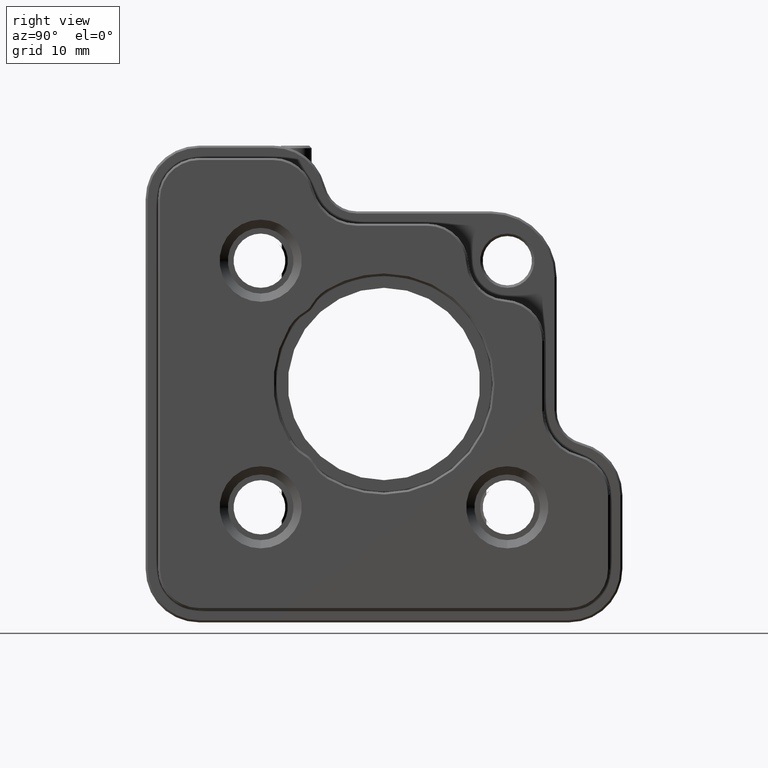
[diagram: clean part render]
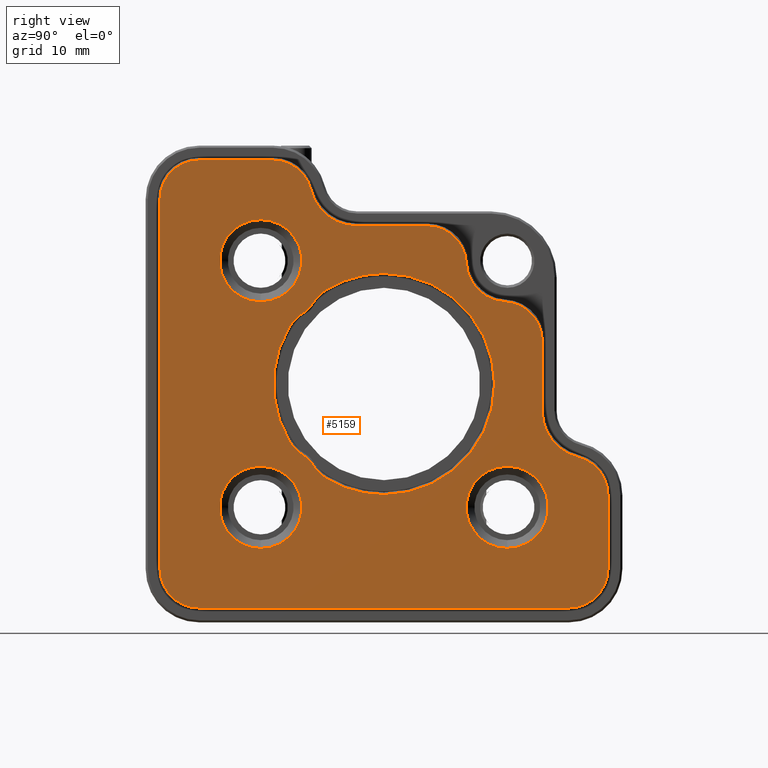
[diagram: same view with one face highlighted and labeled with its STEP entity id]
A machine part, right view. The second image highlights one B-rep face of the part: STEP entity #5159.
In plain terms, the highlighted planar face has unit normal (1, 0, 0).
Its self-contained STEP definition (entity closure, byte-faithful):
#127 = DIRECTION ( 'NONE',  ( 1.000000000000000000, 0.000000000000000000, 0.000000000000000000 ) ) ;
#157 = AXIS2_PLACEMENT_3D ( 'NONE', #36417, #25056, #36172 ) ;
#313 = DIRECTION ( 'NONE',  ( 0.000000000000000000, 1.652117596168366457E-15, -1.000000000000000000 ) ) ;
#544 = CARTESIAN_POINT ( 'NONE',  ( 4.419089919527274368, -8.231932511759529447, 55.00000000000000711 ) ) ;
#548 = CARTESIAN_POINT ( 'NONE',  ( 4.419089919527274368, -15.24979222007645951, 59.24142017658967063 ) ) ;
#697 = EDGE_CURVE ( 'NONE', #7298, #26529, #10355, .T. ) ;
#990 = EDGE_CURVE ( 'NONE', #23276, #33147, #2455, .T. ) ;
#994 = ORIENTED_EDGE ( 'NONE', *, *, #11401, .T. ) ;
#997 = CIRCLE ( 'NONE', #17475, 5.000000000000004441 ) ;
#1159 = AXIS2_PLACEMENT_3D ( 'NONE', #4987, #30526, #33268 ) ;
#1168 = EDGE_CURVE ( 'NONE', #13660, #25238, #21261, .T. ) ;
#1311 = DIRECTION ( 'NONE',  ( 0.000000000000000000, 0.000000000000000000, -1.000000000000000000 ) ) ;
#1599 = DIRECTION ( 'NONE',  ( -1.000000000000000000, -0.000000000000000000, -0.000000000000000000 ) ) ;
#1679 = AXIS2_PLACEMENT_3D ( 'NONE', #2106, #1599, #7485 ) ;
#1693 = CARTESIAN_POINT ( 'NONE',  ( 4.419089919527274368, -15.18889609409257169, 43.48899840526057403 ) ) ;
#1716 = VERTEX_POINT ( 'NONE', #1693 ) ;
#1842 = CARTESIAN_POINT ( 'NONE',  ( 4.419089919527274368, 6.768067488240470553, 45.00000000000001421 ) ) ;
#1859 = CARTESIAN_POINT ( 'NONE',  ( 4.419089919527274368, -17.11853390422319521, 78.63095238095237960 ) ) ;
#2007 = DIRECTION ( 'NONE',  ( 0.000000000000000000, 0.000000000000000000, -1.000000000000000000 ) ) ;
#2106 = CARTESIAN_POINT ( 'NONE',  ( 4.419089919527274368, -15.24979222007645951, 50.75857982341034358 ) ) ;
#2364 = ORIENTED_EDGE ( 'NONE', *, *, #12555, .T. ) ;
#2391 = CIRCLE ( 'NONE', #12971, 5.250000000000067502 ) ;
#2455 = CIRCLE ( 'NONE', #25202, 5.000000000000004441 ) ;
#2482 = CIRCLE ( 'NONE', #32815, 5.000000000000004441 ) ;
#2663 = VECTOR ( 'NONE', #15050, 1000.000000000000000 ) ;
#2709 = CARTESIAN_POINT ( 'NONE',  ( 4.419089919527274368, -11.53389348457395513, 74.25000000000001421 ) ) ;
#2796 = LINE ( 'NONE', #25432, #16821 ) ;
#2799 = VERTEX_POINT ( 'NONE', #17414 ) ;
#2857 = EDGE_CURVE ( 'NONE', #29024, #35888, #14297, .T. ) ;
#2897 = VECTOR ( 'NONE', #19585, 1000.000000000000000 ) ;
#3128 = CIRCLE ( 'NONE', #12548, 5.749999999999998224 ) ;
#3185 = VERTEX_POINT ( 'NONE', #33093 ) ;
#3625 = CARTESIAN_POINT ( 'NONE',  ( 4.419089919527274368, -23.23193251175952767, 35.00000000000000000 ) ) ;
#3635 = CARTESIAN_POINT ( 'NONE',  ( 4.419089919527274368, -8.231932511759527671, 68.45000000000007390 ) ) ;
#3656 = AXIS2_PLACEMENT_3D ( 'NONE', #24014, #4395, #18243 ) ;
#3686 = ORIENTED_EDGE ( 'NONE', *, *, #1168, .T. ) ;
#3812 = DIRECTION ( 'NONE',  ( 0.000000000000000000, 0.000000000000000000, -1.000000000000000000 ) ) ;
#4090 = CARTESIAN_POINT ( 'NONE',  ( 4.419089919527274368, -35.48193251175952412, 32.50000000000000000 ) ) ;
#4139 = DIRECTION ( 'NONE',  ( 0.000000000000000000, 0.000000000000000000, -1.000000000000000000 ) ) ;
#4179 = VERTEX_POINT ( 'NONE', #25168 ) ;
#4336 = DIRECTION ( 'NONE',  ( 1.000000000000000000, 0.000000000000000000, 0.000000000000000000 ) ) ;
#4367 = CIRCLE ( 'NONE', #12596, 4.750000000000000888 ) ;
#4395 = DIRECTION ( 'NONE',  ( -1.000000000000000000, -0.000000000000000000, -0.000000000000000000 ) ) ;
#4659 = ORIENTED_EDGE ( 'NONE', *, *, #12934, .T. ) ;
#4712 = VERTEX_POINT ( 'NONE', #15338 ) ;
#4718 = ORIENTED_EDGE ( 'NONE', *, *, #7825, .T. ) ;
#4787 = CIRCLE ( 'NONE', #157, 5.000000000000004441 ) ;
#4888 = CIRCLE ( 'NONE', #17190, 13.45000000000007390 ) ;
#4987 = CARTESIAN_POINT ( 'NONE',  ( 4.419089919527274368, -2.969103558834755408, 69.50000000000000000 ) ) ;
#5159 = ADVANCED_FACE ( 'NONE', ( #21434, #14008, #24953, #33402, #35563 ), #13121, .T. ) ;
#5343 = EDGE_CURVE ( 'NONE', #3185, #7472, #18374, .T. ) ;
#5396 = AXIS2_PLACEMENT_3D ( 'NONE', #9937, #12732, #13105 ) ;
#5498 = CARTESIAN_POINT ( 'NONE',  ( 4.419089919527274368, -8.231932511759529447, 55.00000000000000711 ) ) ;
#5571 = CIRCLE ( 'NONE', #13782, 4.750000000000004441 ) ;
#5746 = EDGE_CURVE ( 'NONE', #23614, #35516, #9110, .T. ) ;
#5876 = CARTESIAN_POINT ( 'NONE',  ( 4.419089919527274368, -17.86090657607949694, 46.20395779519817125 ) ) ;
#5892 = AXIS2_PLACEMENT_3D ( 'NONE', #27183, #30017, #2007 ) ;
#6017 = VERTEX_POINT ( 'NONE', #32618 ) ;
#6366 = AXIS2_PLACEMENT_3D ( 'NONE', #548, #34108, #313 ) ;
#6390 = CARTESIAN_POINT ( 'NONE',  ( 4.419089919527274368, -15.18889609409257169, 66.51100159473944018 ) ) ;
#6400 = ORIENTED_EDGE ( 'NONE', *, *, #8215, .T. ) ;
#6499 = CARTESIAN_POINT ( 'NONE',  ( 4.419089919527274368, -8.231932511759529447, 55.00000000000000711 ) ) ;
#6971 = CARTESIAN_POINT ( 'NONE',  ( 4.419089919527274368, -23.23193251175952767, 75.00000000000001421 ) ) ;
#7085 = CARTESIAN_POINT ( 'NONE',  ( 4.419089919527274368, 16.76806748824047233, 51.69803902718557254 ) ) ;
#7298 = VERTEX_POINT ( 'NONE', #13044 ) ;
#7472 = VERTEX_POINT ( 'NONE', #1842 ) ;
#7485 = DIRECTION ( 'NONE',  ( 0.000000000000000000, 0.000000000000000000, -1.000000000000000000 ) ) ;
#7681 = EDGE_LOOP ( 'NONE', ( #32984, #15671 ) ) ;
#7747 = ORIENTED_EDGE ( 'NONE', *, *, #30871, .T. ) ;
#7817 = DIRECTION ( 'NONE',  ( 0.000000000000000000, 0.000000000000000000, -1.000000000000000000 ) ) ;
#7825 = EDGE_CURVE ( 'NONE', #2799, #1716, #4888, .T. ) ;
#7963 = ORIENTED_EDGE ( 'NONE', *, *, #9915, .T. ) ;
#8008 = VERTEX_POINT ( 'NONE', #28576 ) ;
#8215 = EDGE_CURVE ( 'NONE', #17989, #24619, #20353, .T. ) ;
#8405 = VERTEX_POINT ( 'NONE', #36434 ) ;
#8515 = ORIENTED_EDGE ( 'NONE', *, *, #697, .T. ) ;
#8563 = EDGE_CURVE ( 'NONE', #1716, #23614, #15956, .T. ) ;
#8585 = EDGE_CURVE ( 'NONE', #30182, #12186, #27363, .T. ) ;
#8740 = EDGE_CURVE ( 'NONE', #7472, #3185, #997, .T. ) ;
#8812 = DIRECTION ( 'NONE',  ( -1.000000000000000000, -0.000000000000000000, -0.000000000000000000 ) ) ;
#8875 = DIRECTION ( 'NONE',  ( -1.000000000000000000, -0.000000000000000000, -0.000000000000000000 ) ) ;
#8975 = CARTESIAN_POINT ( 'NONE',  ( 4.419089919527274368, -30.73193251175952767, 77.50000000000001421 ) ) ;
#9110 = CIRCLE ( 'NONE', #5396, 2.249999999999932498 ) ;
#9128 = EDGE_CURVE ( 'NONE', #19386, #13393, #36111, .T. ) ;
#9138 = LINE ( 'NONE', #31087, #26703 ) ;
#9354 = CARTESIAN_POINT ( 'NONE',  ( 4.419089919527274368, 6.768067488240469665, 40.00000000000000711 ) ) ;
#9550 = CARTESIAN_POINT ( 'NONE',  ( 4.419089919527274368, 19.01806748824047588, 41.50000000000000000 ) ) ;
#9552 = DIRECTION ( 'NONE',  ( -1.000000000000000000, -0.000000000000000000, -0.000000000000000000 ) ) ;
#9603 = CIRCLE ( 'NONE', #1679, 5.250000000000073719 ) ;
#9679 = DIRECTION ( 'NONE',  ( -1.000000000000000000, -0.000000000000000000, -0.000000000000000000 ) ) ;
#9799 = ORIENTED_EDGE ( 'NONE', *, *, #28529, .T. ) ;
#9864 = DIRECTION ( 'NONE',  ( -1.000000000000000000, -0.000000000000000000, -0.000000000000000000 ) ) ;
#9895 = CARTESIAN_POINT ( 'NONE',  ( 4.419089919527274368, -23.23193251175952767, 65.00000000000000000 ) ) ;
#9904 = CARTESIAN_POINT ( 'NONE',  ( 4.419089919527274368, 14.26806748824047588, 32.50000000000000711 ) ) ;
#9915 = EDGE_CURVE ( 'NONE', #6017, #30182, #27626, .T. ) ;
#9937 = CARTESIAN_POINT ( 'NONE',  ( 4.419089919527274368, -18.97995558579503239, 44.25197692596447041 ) ) ;
#10355 = LINE ( 'NONE', #36462, #2897 ) ;
#10497 = EDGE_CURVE ( 'NONE', #8008, #17989, #9138, .T. ) ;
#10501 = CARTESIAN_POINT ( 'NONE',  ( 4.419089919527274368, -21.73193251175952767, 77.50000000000001421 ) ) ;
#10649 = DIRECTION ( 'NONE',  ( 0.000000000000000000, -1.000000000000000000, -1.239088197126290817E-16 ) ) ;
#10774 = ORIENTED_EDGE ( 'NONE', *, *, #25514, .T. ) ;
#11401 = EDGE_CURVE ( 'NONE', #12186, #28310, #2482, .T. ) ;
#11662 = VECTOR ( 'NONE', #10649, 1000.000000000000000 ) ;
#11700 = CARTESIAN_POINT ( 'NONE',  ( 4.419089919527274368, 1.774646438458302278, 69.74358974358975161 ) ) ;
#12177 = CARTESIAN_POINT ( 'NONE',  ( 4.419089919527274368, 14.26806748824047588, 27.75000000000000711 ) ) ;
#12186 = VERTEX_POINT ( 'NONE', #27737 ) ;
#12308 = DIRECTION ( 'NONE',  ( 0.000000000000000000, 0.000000000000000000, -1.000000000000000000 ) ) ;
#12548 = AXIS2_PLACEMENT_3D ( 'NONE', #7085, #26977, #29959 ) ;
#12555 = EDGE_CURVE ( 'NONE', #25815, #2799, #22211, .T. ) ;
#12596 = AXIS2_PLACEMENT_3D ( 'NONE', #32839, #27386, #29987 ) ;
#12732 = DIRECTION ( 'NONE',  ( 1.000000000000000000, 0.000000000000000000, 0.000000000000000000 ) ) ;
#12934 = EDGE_CURVE ( 'NONE', #35888, #35072, #2391, .T. ) ;
#12971 = AXIS2_PLACEMENT_3D ( 'NONE', #21529, #13332, #35729 ) ;
#13044 = CARTESIAN_POINT ( 'NONE',  ( 4.419089919527274368, -21.73193251175952767, 82.25000000000000000 ) ) ;
#13105 = DIRECTION ( 'NONE',  ( 0.000000000000000000, 0.000000000000000000, -1.000000000000000000 ) ) ;
#13121 = PLANE ( 'NONE',  #14709 ) ;
#13332 = DIRECTION ( 'NONE',  ( -1.000000000000000000, -0.000000000000000000, -0.000000000000000000 ) ) ;
#13393 = VERTEX_POINT ( 'NONE', #27295 ) ;
#13519 = AXIS2_PLACEMENT_3D ( 'NONE', #33285, #21928, #19219 ) ;
#13660 = VERTEX_POINT ( 'NONE', #25553 ) ;
#13782 = AXIS2_PLACEMENT_3D ( 'NONE', #8975, #4336, #19283 ) ;
#13875 = ORIENTED_EDGE ( 'NONE', *, *, #18495, .T. ) ;
#13949 = AXIS2_PLACEMENT_3D ( 'NONE', #9904, #29668, #4139 ) ;
#14008 = FACE_BOUND ( 'NONE', #32145, .T. ) ;
#14011 = AXIS2_PLACEMENT_3D ( 'NONE', #9354, #28853, #25934 ) ;
#14093 = CARTESIAN_POINT ( 'NONE',  ( 4.419089919527274368, -18.97995558579503239, 65.74802307403554380 ) ) ;
#14297 = CIRCLE ( 'NONE', #20568, 2.249999999999932498 ) ;
#14401 = DIRECTION ( 'NONE',  ( 0.000000000000000000, 0.000000000000000000, -1.000000000000000000 ) ) ;
#14709 = AXIS2_PLACEMENT_3D ( 'NONE', #6499, #25890, #3812 ) ;
#14751 = DIRECTION ( 'NONE',  ( -1.000000000000000000, -0.000000000000000000, -0.000000000000000000 ) ) ;
#14954 = CARTESIAN_POINT ( 'NONE',  ( 4.419089919527274368, -17.02797471656133155, 45.37102593568001652 ) ) ;
#15050 = DIRECTION ( 'NONE',  ( 0.000000000000000000, 0.000000000000000000, 1.000000000000000000 ) ) ;
#15338 = CARTESIAN_POINT ( 'NONE',  ( 4.419089919527274368, 19.01806748824047588, 41.50000000000000000 ) ) ;
#15532 = EDGE_CURVE ( 'NONE', #4712, #16689, #20735, .T. ) ;
#15671 = ORIENTED_EDGE ( 'NONE', *, *, #990, .T. ) ;
#15956 = CIRCLE ( 'NONE', #16290, 5.250000000000073719 ) ;
#16001 = DIRECTION ( 'NONE',  ( 1.000000000000000000, 0.000000000000000000, 0.000000000000000000 ) ) ;
#16080 = AXIS2_PLACEMENT_3D ( 'NONE', #17136, #8812, #7817 ) ;
#16290 = AXIS2_PLACEMENT_3D ( 'NONE', #34955, #35080, #20994 ) ;
#16510 = AXIS2_PLACEMENT_3D ( 'NONE', #544, #8875, #14401 ) ;
#16689 = VERTEX_POINT ( 'NONE', #24471 ) ;
#16754 = DIRECTION ( 'NONE',  ( -1.000000000000000000, -0.000000000000000000, -0.000000000000000000 ) ) ;
#16821 = VECTOR ( 'NONE', #25055, 1000.000000000000000 ) ;
#17088 = CARTESIAN_POINT ( 'NONE',  ( 4.419089919527274368, -17.02797471656133155, 64.62897406432000480 ) ) ;
#17136 = CARTESIAN_POINT ( 'NONE',  ( 4.419089919527274368, -23.23193251175952767, 40.00000000000000711 ) ) ;
#17190 = AXIS2_PLACEMENT_3D ( 'NONE', #5498, #16754, #27709 ) ;
#17414 = CARTESIAN_POINT ( 'NONE',  ( 4.419089919527274368, -8.231932511759529447, 41.54999999999993321 ) ) ;
#17475 = AXIS2_PLACEMENT_3D ( 'NONE', #29752, #9864, #26785 ) ;
#17559 = CARTESIAN_POINT ( 'NONE',  ( 4.419089919527274368, 19.01806748824047588, 32.50000000000000711 ) ) ;
#17699 = DIRECTION ( 'NONE',  ( -1.000000000000000000, -0.000000000000000000, -0.000000000000000000 ) ) ;
#17873 = VERTEX_POINT ( 'NONE', #4090 ) ;
#17989 = VERTEX_POINT ( 'NONE', #12177 ) ;
#18007 = CARTESIAN_POINT ( 'NONE',  ( 4.419089919527274368, -8.231932511759529447, 55.00000000000000711 ) ) ;
#18020 = ORIENTED_EDGE ( 'NONE', *, *, #8585, .T. ) ;
#18062 = DIRECTION ( 'NONE',  ( 1.000000000000000000, 0.000000000000000000, 0.000000000000000000 ) ) ;
#18134 = CIRCLE ( 'NONE', #13519, 5.750000000000005329 ) ;
#18213 = DIRECTION ( 'NONE',  ( 0.000000000000000000, 0.000000000000000000, -1.000000000000000000 ) ) ;
#18243 = DIRECTION ( 'NONE',  ( 0.000000000000000000, 0.000000000000000000, -1.000000000000000000 ) ) ;
#18353 = EDGE_CURVE ( 'NONE', #35072, #25815, #35127, .T. ) ;
#18374 = CIRCLE ( 'NONE', #14011, 5.000000000000004441 ) ;
#18495 = EDGE_CURVE ( 'NONE', #34706, #36294, #18134, .T. ) ;
#18507 = ORIENTED_EDGE ( 'NONE', *, *, #22102, .T. ) ;
#18626 = ORIENTED_EDGE ( 'NONE', *, *, #27909, .T. ) ;
#18821 = VECTOR ( 'NONE', #32376, 1000.000000000000000 ) ;
#19161 = ORIENTED_EDGE ( 'NONE', *, *, #32599, .T. ) ;
#19219 = DIRECTION ( 'NONE',  ( 0.000000000000000000, 0.000000000000000000, -1.000000000000000000 ) ) ;
#19232 = EDGE_LOOP ( 'NONE', ( #19161, #13875, #18507, #8515, #19787, #7747, #34133, #24623, #6400, #18626, #21674, #24073, #7963, #18020, #994, #10774 ) ) ;
#19283 = DIRECTION ( 'NONE',  ( 0.000000000000000000, 0.000000000000000000, -1.000000000000000000 ) ) ;
#19386 = VERTEX_POINT ( 'NONE', #3625 ) ;
#19400 = AXIS2_PLACEMENT_3D ( 'NONE', #28726, #14751, #19983 ) ;
#19585 = DIRECTION ( 'NONE',  ( 0.000000000000000000, -1.000000000000000000, -6.308085367188388762E-17 ) ) ;
#19693 = EDGE_CURVE ( 'NONE', #17873, #8008, #4367, .T. ) ;
#19787 = ORIENTED_EDGE ( 'NONE', *, *, #24197, .T. ) ;
#19983 = DIRECTION ( 'NONE',  ( 0.000000000000000000, 0.000000000000000000, -1.000000000000000000 ) ) ;
#20353 = CIRCLE ( 'NONE', #13949, 4.750000000000000888 ) ;
#20568 = AXIS2_PLACEMENT_3D ( 'NONE', #14093, #127, #33909 ) ;
#20626 = AXIS2_PLACEMENT_3D ( 'NONE', #18007, #9679, #1311 ) ;
#20735 = CIRCLE ( 'NONE', #5892, 4.750000000000004441 ) ;
#20994 = DIRECTION ( 'NONE',  ( 0.000000000000000000, 9.912705577010186513E-16, -1.000000000000000000 ) ) ;
#21261 = CIRCLE ( 'NONE', #16510, 13.45000000000007390 ) ;
#21434 = FACE_OUTER_BOUND ( 'NONE', #19232, .T. ) ;
#21529 = CARTESIAN_POINT ( 'NONE',  ( 4.419089919527274368, -12.47335268834916988, 62.01785970831694783 ) ) ;
#21674 = ORIENTED_EDGE ( 'NONE', *, *, #15532, .T. ) ;
#21750 = LINE ( 'NONE', #36099, #11662 ) ;
#21885 = DIRECTION ( 'NONE',  ( 0.000000000000000000, 0.000000000000000000, -1.000000000000000000 ) ) ;
#21928 = DIRECTION ( 'NONE',  ( -1.000000000000000000, -0.000000000000000000, -0.000000000000000000 ) ) ;
#21967 = LINE ( 'NONE', #9550, #2663 ) ;
#22102 = EDGE_CURVE ( 'NONE', #36294, #7298, #27481, .T. ) ;
#22211 = CIRCLE ( 'NONE', #20626, 13.45000000000007390 ) ;
#22617 = EDGE_CURVE ( 'NONE', #25238, #29024, #32117, .T. ) ;
#22700 = CARTESIAN_POINT ( 'NONE',  ( 4.419089919527274368, 11.01806748824047766, 60.26282895292478514 ) ) ;
#22801 = CARTESIAN_POINT ( 'NONE',  ( 4.419089919527274368, -19.74293410649893943, 61.95696358233308843 ) ) ;
#22891 = ORIENTED_EDGE ( 'NONE', *, *, #8740, .T. ) ;
#23043 = CIRCLE ( 'NONE', #19400, 5.000000000000004441 ) ;
#23276 = VERTEX_POINT ( 'NONE', #6971 ) ;
#23614 = VERTEX_POINT ( 'NONE', #14954 ) ;
#23833 = CARTESIAN_POINT ( 'NONE',  ( 4.419089919527274368, 11.01806748824047766, 60.26282895292478514 ) ) ;
#24014 = CARTESIAN_POINT ( 'NONE',  ( 4.419089919527274368, -8.231932511759529447, 55.00000000000000711 ) ) ;
#24073 = ORIENTED_EDGE ( 'NONE', *, *, #35316, .T. ) ;
#24197 = EDGE_CURVE ( 'NONE', #26529, #8405, #5571, .T. ) ;
#24471 = CARTESIAN_POINT ( 'NONE',  ( 4.419089919527274368, 15.39901986919285903, 46.11339860753633246 ) ) ;
#24619 = VERTEX_POINT ( 'NONE', #17559 ) ;
#24623 = ORIENTED_EDGE ( 'NONE', *, *, #10497, .T. ) ;
#24640 = EDGE_CURVE ( 'NONE', #33147, #23276, #23043, .T. ) ;
#24716 = ORIENTED_EDGE ( 'NONE', *, *, #22617, .T. ) ;
#24790 = EDGE_LOOP ( 'NONE', ( #31032, #22891 ) ) ;
#24953 = FACE_BOUND ( 'NONE', #7681, .T. ) ;
#25055 = DIRECTION ( 'NONE',  ( 0.000000000000000000, 0.000000000000000000, -1.000000000000000000 ) ) ;
#25056 = DIRECTION ( 'NONE',  ( -1.000000000000000000, -0.000000000000000000, -0.000000000000000000 ) ) ;
#25168 = CARTESIAN_POINT ( 'NONE',  ( 4.419089919527274368, -2.969103558834755408, 74.25000000000001421 ) ) ;
#25202 = AXIS2_PLACEMENT_3D ( 'NONE', #32165, #9552, #18213 ) ;
#25221 = ORIENTED_EDGE ( 'NONE', *, *, #18353, .T. ) ;
#25238 = VERTEX_POINT ( 'NONE', #22801 ) ;
#25432 = CARTESIAN_POINT ( 'NONE',  ( 4.419089919527274368, -35.48193251175952412, 32.50000000000000000 ) ) ;
#25514 = EDGE_CURVE ( 'NONE', #28310, #4179, #27349, .T. ) ;
#25553 = CARTESIAN_POINT ( 'NONE',  ( 4.419089919527274368, -19.74293410649894298, 48.04303641766693289 ) ) ;
#25815 = VERTEX_POINT ( 'NONE', #3635 ) ;
#25890 = DIRECTION ( 'NONE',  ( 1.000000000000000000, 0.000000000000000000, 0.000000000000000000 ) ) ;
#25934 = DIRECTION ( 'NONE',  ( 0.000000000000000000, 0.000000000000000000, -1.000000000000000000 ) ) ;
#26310 = CARTESIAN_POINT ( 'NONE',  ( 4.419089919527274368, 6.768067488240469665, 70.00000000000000000 ) ) ;
#26529 = VERTEX_POINT ( 'NONE', #32528 ) ;
#26703 = VECTOR ( 'NONE', #27998, 1000.000000000000000 ) ;
#26785 = DIRECTION ( 'NONE',  ( 0.000000000000000000, 0.000000000000000000, -1.000000000000000000 ) ) ;
#26925 = ORIENTED_EDGE ( 'NONE', *, *, #8563, .T. ) ;
#26977 = DIRECTION ( 'NONE',  ( -1.000000000000000000, -0.000000000000000000, -0.000000000000000000 ) ) ;
#27183 = CARTESIAN_POINT ( 'NONE',  ( 4.419089919527274368, 14.26806748824047588, 41.50000000000000711 ) ) ;
#27289 = ORIENTED_EDGE ( 'NONE', *, *, #2857, .T. ) ;
#27295 = CARTESIAN_POINT ( 'NONE',  ( 4.419089919527274368, -23.23193251175952767, 45.00000000000001421 ) ) ;
#27349 = CIRCLE ( 'NONE', #1159, 4.750000000000004441 ) ;
#27363 = CIRCLE ( 'NONE', #33994, 4.749999999999997335 ) ;
#27386 = DIRECTION ( 'NONE',  ( 1.000000000000000000, 0.000000000000000000, 0.000000000000000000 ) ) ;
#27481 = CIRCLE ( 'NONE', #34375, 4.750000000000004441 ) ;
#27626 = LINE ( 'NONE', #23833, #18821 ) ;
#27709 = DIRECTION ( 'NONE',  ( 0.000000000000000000, 0.000000000000000000, -1.000000000000000000 ) ) ;
#27737 = CARTESIAN_POINT ( 'NONE',  ( 4.419089919527274368, 6.511657231830218606, 65.00657895021784327 ) ) ;
#27909 = EDGE_CURVE ( 'NONE', #24619, #4712, #21967, .T. ) ;
#27998 = DIRECTION ( 'NONE',  ( 0.000000000000000000, 1.000000000000000000, 6.308085367188388762E-17 ) ) ;
#28310 = VERTEX_POINT ( 'NONE', #11700 ) ;
#28529 = EDGE_CURVE ( 'NONE', #35516, #13660, #9603, .T. ) ;
#28576 = CARTESIAN_POINT ( 'NONE',  ( 4.419089919527274368, -30.73193251175952767, 27.75000000000000355 ) ) ;
#28726 = CARTESIAN_POINT ( 'NONE',  ( 4.419089919527274368, -23.23193251175952767, 70.00000000000000000 ) ) ;
#28747 = DIRECTION ( 'NONE',  ( 0.000000000000000000, 0.000000000000000000, -1.000000000000000000 ) ) ;
#28853 = DIRECTION ( 'NONE',  ( -1.000000000000000000, -0.000000000000000000, -0.000000000000000000 ) ) ;
#29024 = VERTEX_POINT ( 'NONE', #29778 ) ;
#29668 = DIRECTION ( 'NONE',  ( 1.000000000000000000, 0.000000000000000000, 0.000000000000000000 ) ) ;
#29752 = CARTESIAN_POINT ( 'NONE',  ( 4.419089919527274368, 6.768067488240469665, 40.00000000000000711 ) ) ;
#29778 = CARTESIAN_POINT ( 'NONE',  ( 4.419089919527274368, -17.86090657607949694, 63.79604220480183585 ) ) ;
#29959 = DIRECTION ( 'NONE',  ( 0.000000000000000000, 0.000000000000000000, -1.000000000000000000 ) ) ;
#29987 = DIRECTION ( 'NONE',  ( 0.000000000000000000, 0.000000000000000000, -1.000000000000000000 ) ) ;
#30017 = DIRECTION ( 'NONE',  ( 1.000000000000000000, 0.000000000000000000, 0.000000000000000000 ) ) ;
#30064 = ORIENTED_EDGE ( 'NONE', *, *, #31583, .T. ) ;
#30182 = VERTEX_POINT ( 'NONE', #22700 ) ;
#30526 = DIRECTION ( 'NONE',  ( 1.000000000000000000, 0.000000000000000000, 0.000000000000000000 ) ) ;
#30871 = EDGE_CURVE ( 'NONE', #8405, #17873, #2796, .T. ) ;
#31032 = ORIENTED_EDGE ( 'NONE', *, *, #5343, .T. ) ;
#31087 = CARTESIAN_POINT ( 'NONE',  ( 4.419089919527274368, 14.26806748824047588, 27.75000000000000711 ) ) ;
#31583 = EDGE_CURVE ( 'NONE', #13393, #19386, #4787, .T. ) ;
#32112 = ORIENTED_EDGE ( 'NONE', *, *, #9128, .T. ) ;
#32117 = CIRCLE ( 'NONE', #6366, 5.250000000000067502 ) ;
#32145 = EDGE_LOOP ( 'NONE', ( #4659, #25221, #2364, #4718, #26925, #36229, #9799, #3686, #24716, #27289 ) ) ;
#32165 = CARTESIAN_POINT ( 'NONE',  ( 4.419089919527274368, -23.23193251175952767, 70.00000000000000000 ) ) ;
#32244 = CARTESIAN_POINT ( 'NONE',  ( 4.419089919527274368, 6.268067488240477658, 60.26282895292478514 ) ) ;
#32376 = DIRECTION ( 'NONE',  ( 0.000000000000000000, 1.239088197126290817E-16, 1.000000000000000000 ) ) ;
#32528 = CARTESIAN_POINT ( 'NONE',  ( 4.419089919527274368, -30.73193251175952767, 82.25000000000000000 ) ) ;
#32599 = EDGE_CURVE ( 'NONE', #4179, #34706, #21750, .T. ) ;
#32618 = CARTESIAN_POINT ( 'NONE',  ( 4.419089919527274368, 11.01806748824047766, 51.69803902718557254 ) ) ;
#32764 = EDGE_LOOP ( 'NONE', ( #32112, #30064 ) ) ;
#32815 = AXIS2_PLACEMENT_3D ( 'NONE', #26310, #17699, #28747 ) ;
#32839 = CARTESIAN_POINT ( 'NONE',  ( 4.419089919527274368, -30.73193251175952767, 32.50000000000000711 ) ) ;
#32984 = ORIENTED_EDGE ( 'NONE', *, *, #24640, .T. ) ;
#33093 = CARTESIAN_POINT ( 'NONE',  ( 4.419089919527274368, 6.768067488240469665, 35.00000000000000000 ) ) ;
#33147 = VERTEX_POINT ( 'NONE', #9895 ) ;
#33268 = DIRECTION ( 'NONE',  ( 0.000000000000000000, 0.000000000000000000, -1.000000000000000000 ) ) ;
#33285 = CARTESIAN_POINT ( 'NONE',  ( 4.419089919527274368, -11.53389348457395513, 80.00000000000000000 ) ) ;
#33402 = FACE_BOUND ( 'NONE', #32764, .T. ) ;
#33909 = DIRECTION ( 'NONE',  ( 0.000000000000000000, 0.000000000000000000, -1.000000000000000000 ) ) ;
#33994 = AXIS2_PLACEMENT_3D ( 'NONE', #32244, #18062, #12308 ) ;
#34108 = DIRECTION ( 'NONE',  ( -1.000000000000000000, -0.000000000000000000, -0.000000000000000000 ) ) ;
#34133 = ORIENTED_EDGE ( 'NONE', *, *, #19693, .T. ) ;
#34375 = AXIS2_PLACEMENT_3D ( 'NONE', #10501, #16001, #21885 ) ;
#34706 = VERTEX_POINT ( 'NONE', #2709 ) ;
#34955 = CARTESIAN_POINT ( 'NONE',  ( 4.419089919527274368, -12.47335268834916988, 47.98214029168306638 ) ) ;
#35072 = VERTEX_POINT ( 'NONE', #6390 ) ;
#35080 = DIRECTION ( 'NONE',  ( -1.000000000000000000, -0.000000000000000000, -0.000000000000000000 ) ) ;
#35127 = CIRCLE ( 'NONE', #3656, 13.45000000000007390 ) ;
#35316 = EDGE_CURVE ( 'NONE', #16689, #6017, #3128, .T. ) ;
#35516 = VERTEX_POINT ( 'NONE', #5876 ) ;
#35563 = FACE_BOUND ( 'NONE', #24790, .T. ) ;
#35729 = DIRECTION ( 'NONE',  ( 0.000000000000000000, -2.643388153869386488E-15, -1.000000000000000000 ) ) ;
#35888 = VERTEX_POINT ( 'NONE', #17088 ) ;
#36099 = CARTESIAN_POINT ( 'NONE',  ( 4.419089919527274368, -11.53389348457395513, 74.25000000000001421 ) ) ;
#36111 = CIRCLE ( 'NONE', #16080, 5.000000000000004441 ) ;
#36172 = DIRECTION ( 'NONE',  ( 0.000000000000000000, 0.000000000000000000, -1.000000000000000000 ) ) ;
#36229 = ORIENTED_EDGE ( 'NONE', *, *, #5746, .T. ) ;
#36294 = VERTEX_POINT ( 'NONE', #1859 ) ;
#36417 = CARTESIAN_POINT ( 'NONE',  ( 4.419089919527274368, -23.23193251175952767, 40.00000000000000711 ) ) ;
#36434 = CARTESIAN_POINT ( 'NONE',  ( 4.419089919527274368, -35.48193251175952412, 77.50000000000001421 ) ) ;
#36462 = CARTESIAN_POINT ( 'NONE',  ( 4.419089919527274368, -30.73193251175952767, 82.25000000000000000 ) ) ;